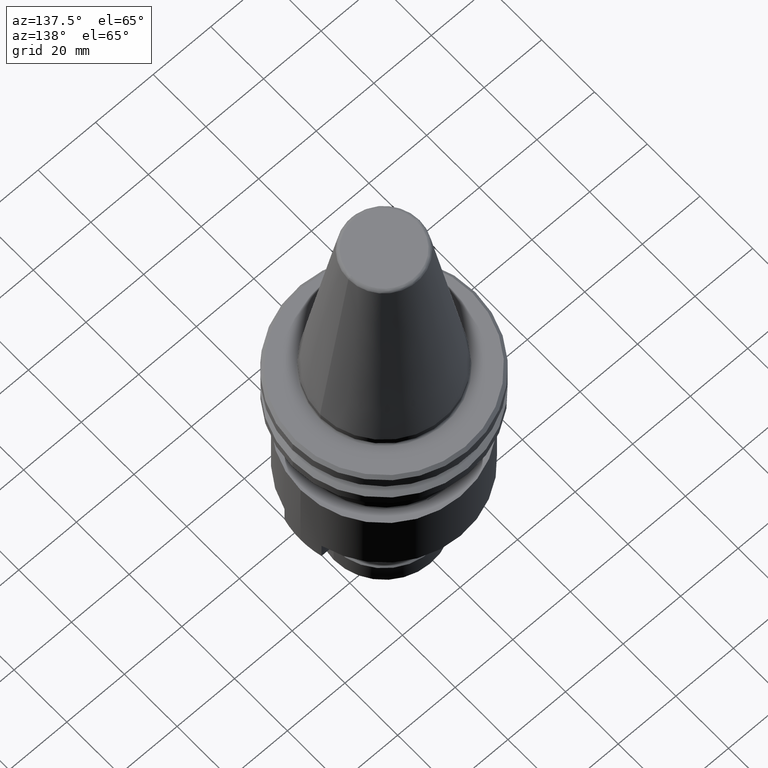
[diagram: clean part render]
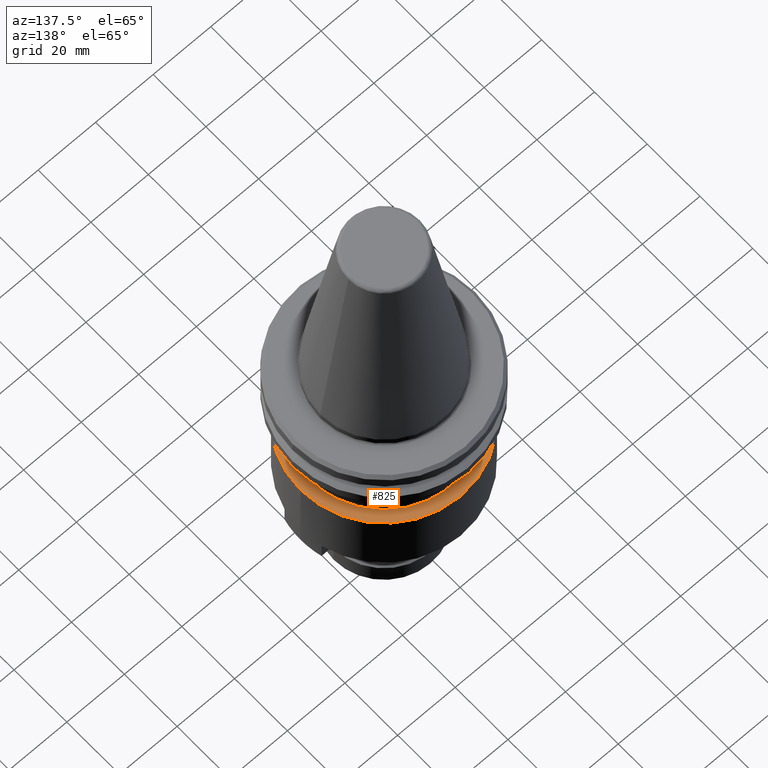
[diagram: same view with one face highlighted and labeled with its STEP entity id]
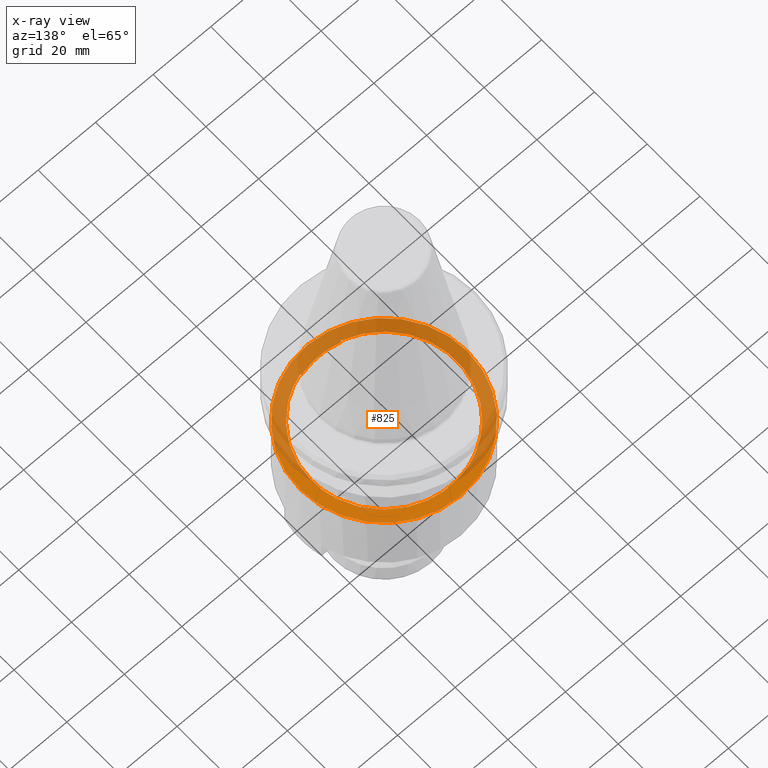
[diagram: x-ray of the same camera — body ghosted, the highlighted face saturated]
A machine part, auxiliary view. The second image highlights one B-rep face of the part: STEP entity #825.
The next image is the same camera in x-ray: the body ghosted, the highlighted face saturated — about 65% of this face is hidden behind the body in this view.
In plain terms, the highlighted planar face has unit normal (0, 0, -1).
Its self-contained STEP definition (entity closure, byte-faithful):
#2 = CARTESIAN_POINT ( 'NONE',  ( 98.73625297782088200, 112.7266800654597700, 59.76398860271278600 ) ) ;
#6 = VERTEX_POINT ( 'NONE', #994 ) ;
#36 = DIRECTION ( 'NONE',  ( -0.0000000000000000000, -0.0000000000000000000, -1.000000000000000000 ) ) ;
#71 = CARTESIAN_POINT ( 'NONE',  ( 106.8569960331300900, 88.18988720561229400, 59.76398860271280700 ) ) ;
#75 = CARTESIAN_POINT ( 'NONE',  ( 69.49264204341314200, 72.04041570050684100, 59.76398860271280700 ) ) ;
#82 = CARTESIAN_POINT ( 'NONE',  ( 104.6753528859718300, 82.20484227077997700, 59.76398860271281400 ) ) ;
#87 = CARTESIAN_POINT ( 'NONE',  ( 66.25719113330525500, 74.31624200357958900, 59.76398860271279300 ) ) ;
#91 = CARTESIAN_POINT ( 'NONE',  ( 103.4234690216822400, 107.3656526831247500, 59.76398860271277900 ) ) ;
#93 = B_SPLINE_CURVE_WITH_KNOTS ( 'NONE', 3,
 ( #342, #1921, #1931, #353, #2196, #624, #2447, #897, #2684, #1159, #2955, #1414, #3218, #1691, #75, #1944, #364, #2205, #636, #2460, #903, #2693, #1175, #2966, #1424, #3230, #1704, #87, #1953, #380, #2219, #647, #2469, #917, #2707, #1187, #2984, #1435, #3245, #1714, #101, #1963, #392, #2235, #659, #2478, #929, #2719, #1198, #2999, #1446, #3254, #1724, #111, #1975, #403, #2244, #673, #2489, #941, #2733, #1211, #3008, #1459, #3266, #1731, #124, #1990, #411, #2254, #686, #2501, #951, #2747, #1223, #3024, #1468, #3278, #1744, #133, #2000, #424, #2264, #693, #2511, #962, #2758, #1235, #3039, #1483, #3286, #1752, #146, #2011, #436, #2279, #702, #2521, #978, #2769, #1244, #3052, #1496, #3300, #1758, #156, #2024, #447, #2289, #716, #2534, #990, #2784, #1259, #3063, #1506, #3312, #1770, #174, #2037, #464, #2299, #727, #2546 ),
 .UNSPECIFIED., .F., .F.,
 ( 4, 1, 1, 1, 1, 1, 2, 2, 1, 1, 1, 1, 1, 2, 2, 1, 1, 1, 1, 1, 2, 2, 1, 1, 1, 1, 1, 2, 2, 1, 1, 1, 1, 2, 2, 1, 1, 1, 1, 2, 2, 1, 1, 1, 2, 2, 2, 1, 1, 1, 2, 2, 1, 1, 1, 1, 2, 2, 1, 1, 1, 1, 2, 2, 1, 1, 1, 1, 1, 2, 2, 1, 1, 1, 1, 1, 2, 2, 1, 1, 1, 1, 1, 2, 2, 1, 1, 1, 1, 1, 2, 2, 4 ),
 ( 0.0000000000000000000, 0.03125000000000551600, 0.04687500000000852800, 0.05468750000000964500, 0.05859375000000983200, 0.06054687500001029700, 0.06152343750001015200, 0.06250000000001000600, 0.09374999999999064600, 0.1093749999999813100, 0.1171874999999765000, 0.1210937499999742300, 0.1230468749999730900, 0.1240234374999727300, 0.1249999999999723600, 0.1562499999999598700, 0.1718749999999539000, 0.1796874999999512100, 0.1835937499999498500, 0.1855468749999493700, 0.1865234374999496200, 0.1874999999999498700, 0.2187499999999701100, 0.2343749999999802400, 0.2421874999999852900, 0.2460937499999878200, 0.2480468749999888400, 0.2490234374999891200, 0.2499999999999894000, 0.2812500000000040000, 0.2968750000000115500, 0.3046875000000149900, 0.3085937500000166000, 0.3105468750000175400, 0.3125000000000184300, 0.3437500000000276400, 0.3593750000000322000, 0.3671875000000344200, 0.3710937500000355300, 0.3730468750000360800, 0.3750000000000366400, 0.4062500000000432400, 0.4218750000000468000, 0.4296875000000482400, 0.4335937500000489600, 0.4375000000000496300, 0.5000000000000534000, 0.5312500000000556200, 0.5468750000000569500, 0.5546875000000578400, 0.5585937500000582900, 0.5625000000000587300, 0.5937500000000630600, 0.6093750000000655000, 0.6171875000000667200, 0.6210937500000673900, 0.6230468750000673900, 0.6250000000000673900, 0.6562500000000640600, 0.6718750000000622800, 0.6796875000000617300, 0.6835937500000610600, 0.6855468750000604000, 0.6875000000000597300, 0.7187500000000455200, 0.7343750000000381900, 0.7421875000000347500, 0.7460937500000333100, 0.7480468750000327500, 0.7490234375000323100, 0.7500000000000317500, 0.7812500000000193200, 0.7968750000000131000, 0.8046875000000098800, 0.8085937500000086600, 0.8105468750000084400, 0.8115234375000082200, 0.8125000000000081000, 0.8437500000000077700, 0.8593750000000074400, 0.8671875000000076600, 0.8710937500000074400, 0.8730468750000073300, 0.8740234375000069900, 0.8750000000000065500, 0.9062499999999963400, 0.9218749999999913400, 0.9296874999999887900, 0.9335937499999875700, 0.9355468749999873400, 0.9365234374999871200, 0.9374999999999870100, 1.000000000000000000 ),
 .UNSPECIFIED. ) ;
#95 = CARTESIAN_POINT ( 'NONE',  ( 96.90778647053885200, 73.21285567964224600, 59.76398860271280000 ) ) ;
#101 = CARTESIAN_POINT ( 'NONE',  ( 61.18092796304370800, 80.02532008920351800, 59.76398860271277200 ) ) ;
#107 = CARTESIAN_POINT ( 'NONE',  ( 91.74156811568381900, 70.34024109628178700, 59.76398860271277900 ) ) ;
#111 = CARTESIAN_POINT ( 'NONE',  ( 58.58307114660474500, 85.27852611993290600, 59.76398860271279300 ) ) ;
#113 = CARTESIAN_POINT ( 'NONE',  ( 75.30520418466076600, 69.94471248863992200, 59.76398860196545800 ) ) ;
#124 = CARTESIAN_POINT ( 'NONE',  ( 57.51835112268477700, 97.98305092681553700, 59.76398860271280700 ) ) ;
#133 = CARTESIAN_POINT ( 'NONE',  ( 60.19274199797298800, 105.6900952125274000, 59.76398860271278600 ) ) ;
#137 = VERTEX_POINT ( 'NONE', #2229 ) ;
#146 = CARTESIAN_POINT ( 'NONE',  ( 63.34359679979506600, 110.2155775735695900, 59.76398860271282800 ) ) ;
#156 = CARTESIAN_POINT ( 'NONE',  ( 68.35648041512584400, 114.6218704267962600, 59.76398860271278600 ) ) ;
#159 = CARTESIAN_POINT ( 'NONE',  ( 101.5699181125353500, 109.9065491247149700, 59.76398860271280000 ) ) ;
#170 = CARTESIAN_POINT ( 'NONE',  ( 75.30520418466076600, 77.18607933360428300, 59.76398860196545800 ) ) ;
#174 = CARTESIAN_POINT ( 'NONE',  ( 72.26861198594029600, 116.7494425365661800, 59.76398860271281400 ) ) ;
#196 = CIRCLE ( 'NONE', #1811, 28.99999999999999600 ) ;
#199 = CARTESIAN_POINT ( 'NONE',  ( 89.29234113264958200, 117.8441525182491300, 59.76398860196545800 ) ) ;
#212 = CARTESIAN_POINT ( 'NONE',  ( 82.29877265865518200, 93.68607934060428000, 59.76398860271279300 ) ) ;
#222 = DIRECTION ( 'NONE',  ( -0.0000000000000000000, 1.000000000000000000, -0.0000000000000000000 ) ) ;
#236 = CARTESIAN_POINT ( 'NONE',  ( 92.76710590970829200, 116.5539228016611700, 59.76398860271280000 ) ) ;
#243 = CARTESIAN_POINT ( 'NONE',  ( 99.50221363313275400, 112.0319700290777500, 59.76398860271279300 ) ) ;
#299 = DIRECTION ( 'NONE',  ( -1.000000000000000000, 0.0000000000000000000, 0.0000000000000000000 ) ) ;
#319 = CARTESIAN_POINT ( 'NONE',  ( 92.87571574797641500, 116.5038912464823700, 59.76398860271278600 ) ) ;
#327 = VERTEX_POINT ( 'NONE', #199 ) ;
#342 = CARTESIAN_POINT ( 'NONE',  ( 75.30520418466076600, 69.52800615965199400, 59.76398860196545800 ) ) ;
#348 = CARTESIAN_POINT ( 'NONE',  ( 107.4487726577334600, 93.04104384696461200, 59.76398860271280700 ) ) ;
#353 = CARTESIAN_POINT ( 'NONE',  ( 73.18630610073250900, 70.24235133808097900, 59.76398860271280000 ) ) ;
#361 = CARTESIAN_POINT ( 'NONE',  ( 106.3994395270687800, 86.49365390280175300, 59.76398860271278600 ) ) ;
#364 = CARTESIAN_POINT ( 'NONE',  ( 69.33857492544194700, 72.13251546751597200, 59.76398860271277900 ) ) ;
#369 = CARTESIAN_POINT ( 'NONE',  ( 104.3484050228924100, 105.7853085696923800, 59.76398860271278600 ) ) ;
#372 = CARTESIAN_POINT ( 'NONE',  ( 103.2506635238172800, 79.70394154604176200, 59.76398860271278600 ) ) ;
#379 = CARTESIAN_POINT ( 'NONE',  ( 106.2111967496482200, 101.4783981148753900, 59.76398860271280000 ) ) ;
#380 = CARTESIAN_POINT ( 'NONE',  ( 64.98094891672838000, 75.42674024084378500, 59.76398860271279300 ) ) ;
#388 = CARTESIAN_POINT ( 'NONE',  ( 96.55409964012558500, 72.96627763425226500, 59.76398860271280700 ) ) ;
#392 = CARTESIAN_POINT ( 'NONE',  ( 60.94366353552291600, 80.40135153961028900, 59.76398860271279300 ) ) ;
#397 = CARTESIAN_POINT ( 'NONE',  ( 89.29234113264958200, 69.52800616136374900, 59.76398860196545800 ) ) ;
#403 = CARTESIAN_POINT ( 'NONE',  ( 57.87099395632977700, 87.67985997287087200, 59.76398860271278600 ) ) ;
#411 = CARTESIAN_POINT ( 'NONE',  ( 57.57081140343890300, 98.27517396014356200, 59.76398860271280000 ) ) ;
#424 = CARTESIAN_POINT ( 'NONE',  ( 60.68096447357653000, 106.5394370830487200, 59.76398860271280700 ) ) ;
#436 = CARTESIAN_POINT ( 'NONE',  ( 63.81373769609086100, 110.7528341561813400, 59.76398860271280000 ) ) ;
#447 = CARTESIAN_POINT ( 'NONE',  ( 69.04473855327536600, 115.0604558536675200, 59.76398860271280000 ) ) ;
#464 = CARTESIAN_POINT ( 'NONE',  ( 72.31939120460619100, 116.7714582023557200, 59.76398860271278600 ) ) ;
#520 = AXIS2_PLACEMENT_3D ( 'NONE', #212, #1996, #3125 ) ;
#539 = CARTESIAN_POINT ( 'NONE',  ( 92.39904056708303400, 116.7198368604139200, 59.76398860271278600 ) ) ;
#540 = EDGE_CURVE ( 'NONE', #3360, #137, #2407, .T. ) ;
#561 = EDGE_LOOP ( 'NONE', ( #3148, #3134, #2452, #1295, #3337, #1618, #1538 ) ) ;
#562 = VERTEX_POINT ( 'NONE', #1692 ) ;
#585 = ORIENTED_EDGE ( 'NONE', *, *, #540, .F. ) ;
#595 = CARTESIAN_POINT ( 'NONE',  ( 104.0508724727735800, 106.3188592182505900, 59.76398860271279300 ) ) ;
#615 = CARTESIAN_POINT ( 'NONE',  ( 102.8302574621407600, 108.2280907977442300, 59.76398860271281400 ) ) ;
#624 = CARTESIAN_POINT ( 'NONE',  ( 72.54654614892705000, 70.50366528697156800, 59.76398860271280000 ) ) ;
#632 = CARTESIAN_POINT ( 'NONE',  ( 106.2753351093162600, 86.09339432999865900, 59.76398860271281400 ) ) ;
#636 = CARTESIAN_POINT ( 'NONE',  ( 69.29373123381331800, 72.15954280574416700, 59.76398860271279300 ) ) ;
#642 = CARTESIAN_POINT ( 'NONE',  ( 101.3268727039267100, 77.21441807839360600, 59.76398860271276400 ) ) ;
#647 = CARTESIAN_POINT ( 'NONE',  ( 63.76270346068407900, 76.68646114816765200, 59.76398860271278600 ) ) ;
#657 = CARTESIAN_POINT ( 'NONE',  ( 96.44633350282349200, 72.89255183707749100, 59.76398860271280700 ) ) ;
#659 = CARTESIAN_POINT ( 'NONE',  ( 60.87463017267737100, 80.51297019393840100, 59.76398860271279300 ) ) ;
#673 = CARTESIAN_POINT ( 'NONE',  ( 57.66357074914841300, 88.62251529468427700, 59.76398860271279300 ) ) ;
#686 = CARTESIAN_POINT ( 'NONE',  ( 58.00046833833854300, 100.2564451299768100, 59.76398860271278600 ) ) ;
#693 = CARTESIAN_POINT ( 'NONE',  ( 60.80151120881796300, 106.7395267746183100, 59.76398860271280000 ) ) ;
#694 = CARTESIAN_POINT ( 'NONE',  ( 105.8291879083657100, 102.5773292607540600, 59.76398860271280000 ) ) ;
#696 = AXIS2_PLACEMENT_3D ( 'NONE', #1460, #2251, #2316 ) ;
#702 = CARTESIAN_POINT ( 'NONE',  ( 65.35572933044723200, 112.2778911131268400, 59.76398860271277200 ) ) ;
#710 = CARTESIAN_POINT ( 'NONE',  ( 106.1296735627512400, 101.7249918741833500, 59.76398860271277900 ) ) ;
#716 = CARTESIAN_POINT ( 'NONE',  ( 69.21055547007824800, 115.1621468472324500, 59.76398860271280700 ) ) ;
#727 = CARTESIAN_POINT ( 'NONE',  ( 74.29263264974763100, 117.5510211824313600, 59.76398860271280000 ) ) ;
#783 = CARTESIAN_POINT ( 'NONE',  ( 105.3885757849273500, 103.6970919425879300, 59.76398860271278600 ) ) ;
#818 = CARTESIAN_POINT ( 'NONE',  ( 107.4487726544760200, 93.68607934060428000, 59.76398860271279300 ) ) ;
#825 = ADVANCED_FACE ( 'NONE', ( #2047, #2155 ), #887, .F. ) ;
#887 = PLANE ( 'NONE',  #696 ) ;
#893 = CARTESIAN_POINT ( 'NONE',  ( 107.3038404777336400, 90.95582999573875300, 59.76398860271278600 ) ) ;
#897 = CARTESIAN_POINT ( 'NONE',  ( 72.39503495122465900, 70.56814769170375700, 59.76398860271280000 ) ) ;
#902 = CARTESIAN_POINT ( 'NONE',  ( 106.2374153870293900, 85.97467592522457400, 59.76398860271280000 ) ) ;
#903 = CARTESIAN_POINT ( 'NONE',  ( 67.96530335808077400, 73.00382769105523600, 59.76398860271280000 ) ) ;
#908 = CARTESIAN_POINT ( 'NONE',  ( 100.0666946786072800, 75.88499422418081500, 59.76398860271279300 ) ) ;
#917 = CARTESIAN_POINT ( 'NONE',  ( 63.46957780516665800, 77.01313432237395800, 59.76398860271281400 ) ) ;
#923 = CARTESIAN_POINT ( 'NONE',  ( 95.00055005349518900, 71.96093107004180900, 59.76398860271279300 ) ) ;
#929 = CARTESIAN_POINT ( 'NONE',  ( 59.91840858524360400, 82.16971479945804900, 59.76398860271278600 ) ) ;
#930 = VERTEX_POINT ( 'NONE', #113 ) ;
#941 = CARTESIAN_POINT ( 'NONE',  ( 57.60716459988633900, 88.90521299421122600, 59.76398860271279300 ) ) ;
#951 = CARTESIAN_POINT ( 'NONE',  ( 58.62566368512194300, 102.1816264303291700, 59.76398860271280000 ) ) ;
#962 = CARTESIAN_POINT ( 'NONE',  ( 61.22210477394592900, 107.4266652095891200, 59.76398860271279300 ) ) ;
#978 = CARTESIAN_POINT ( 'NONE',  ( 66.01670035837808800, 112.8545238135190200, 59.76398860271279300 ) ) ;
#990 = CARTESIAN_POINT ( 'NONE',  ( 69.26172172359174800, 115.1932438278613800, 59.76398860271279300 ) ) ;
#994 = CARTESIAN_POINT ( 'NONE',  ( 75.30520418466076600, 117.8441525209326100, 59.76398860196545800 ) ) ;
#1006 = DIRECTION ( 'NONE',  ( -0.0000000000000000000, -0.0000000000000000000, -1.000000000000000000 ) ) ;
#1012 = EDGE_CURVE ( 'NONE', #2109, #930, #1920, .T. ) ;
#1016 = CARTESIAN_POINT ( 'NONE',  ( 106.0323662911173100, 102.0102962768684000, 59.76398860271277900 ) ) ;
#1058 = EDGE_CURVE ( 'NONE', #327, #3145, #1192, .T. ) ;
#1060 = CARTESIAN_POINT ( 'NONE',  ( 75.30520418466076600, 69.52800615965199400, 59.76398860196545800 ) ) ;
#1062 = CIRCLE ( 'NONE', #1098, 24.75000000000000700 ) ;
#1098 = AXIS2_PLACEMENT_3D ( 'NONE', #1655, #36, #1912 ) ;
#1099 = EDGE_CURVE ( 'NONE', #3112, #562, #1686, .T. ) ;
#1153 = CARTESIAN_POINT ( 'NONE',  ( 107.1945631522993000, 90.11762902504341400, 59.76398860271280000 ) ) ;
#1159 = CARTESIAN_POINT ( 'NONE',  ( 72.35100078892006100, 70.58706082327849200, 59.76398860271279300 ) ) ;
#1161 = CARTESIAN_POINT ( 'NONE',  ( 96.98311584077720200, 114.1156998907281700, 59.76398860271280000 ) ) ;
#1170 = CARTESIAN_POINT ( 'NONE',  ( 105.6534086020057100, 84.30949379873354100, 59.76398860271279300 ) ) ;
#1175 = CARTESIAN_POINT ( 'NONE',  ( 66.66337213640763100, 73.98582156619504200, 59.76398860271280000 ) ) ;
#1182 = CARTESIAN_POINT ( 'NONE',  ( 99.75407897042565300, 75.57965570118481900, 59.76398860271278600 ) ) ;
#1187 = CARTESIAN_POINT ( 'NONE',  ( 63.40045760339941000, 77.09160331472926900, 59.76398860271281400 ) ) ;
#1191 = CARTESIAN_POINT ( 'NONE',  ( 93.44419087713483000, 71.13939560411024800, 59.76398860271277900 ) ) ;
#1192 = B_SPLINE_CURVE_WITH_KNOTS ( 'NONE', 3,
 ( #3186, #2865, #2207, #2738, #539, #1580, #236, #1409, #319, #2850, #2285, #1771, #2283, #2107, #2372, #3267, #1614, #1161, #2778, #2, #1994, #1616, #243, #3374, #3201, #159, #615, #91, #595, #369, #1394, #2390, #3248, #2038, #783, #694, #1016, #710, #1820, #3025, #379, #1420, #1456, #3285, #3264, #3244, #3241, #3228, #3036, #3021, #3007, #2998 ),
 .UNSPECIFIED., .F., .F.,
 ( 4, 1, 1, 1, 1, 2, 2, 1, 1, 1, 1, 2, 2, 1, 1, 1, 2, 2, 2, 1, 1, 1, 2, 2, 1, 1, 1, 1, 2, 2, 1, 1, 1, 1, 2, 2, 4 ),
 ( 0.0000000000000000000, 0.06250000000002256500, 0.09375000000003298800, 0.1093750000000381900, 0.1171875000000399300, 0.1210937500000410500, 0.1250000000000421900, 0.1875000000000659800, 0.2187500000000784100, 0.2343750000000844600, 0.2421875000000874600, 0.2460937500000880700, 0.2500000000000886500, 0.3125000000000792700, 0.3437500000000750500, 0.3593750000000737700, 0.3671875000000727200, 0.3750000000000716600, 0.5000000000000480700, 0.5625000000000367500, 0.5937500000000307500, 0.6093750000000279800, 0.6171875000000270900, 0.6250000000000262000, 0.6875000000000229800, 0.7187500000000209800, 0.7343750000000204300, 0.7421875000000197600, 0.7460937500000201000, 0.7500000000000205400, 0.8125000000000131000, 0.8437500000000094400, 0.8593750000000075500, 0.8671875000000057700, 0.8710937500000055500, 0.8750000000000052200, 1.000000000000000000 ),
 .UNSPECIFIED. ) ;
#1198 = CARTESIAN_POINT ( 'NONE',  ( 59.10804807216825900, 83.95077806212313500, 59.76398860271278600 ) ) ;
#1208 = EDGE_LOOP ( 'NONE', ( #2268, #585 ) ) ;
#1211 = CARTESIAN_POINT ( 'NONE',  ( 57.14877287900996100, 92.11092144075493600, 59.76398860271283600 ) ) ;
#1223 = CARTESIAN_POINT ( 'NONE',  ( 58.79442082893011400, 102.6342943303087600, 59.76398860271280000 ) ) ;
#1235 = CARTESIAN_POINT ( 'NONE',  ( 62.57337517373439100, 109.2956182834423500, 59.76398860271280000 ) ) ;
#1244 = CARTESIAN_POINT ( 'NONE',  ( 66.17677956620882200, 112.9890405730372700, 59.76398860271281400 ) ) ;
#1259 = CARTESIAN_POINT ( 'NONE',  ( 70.51951388191243100, 115.9200936134112100, 59.76398860271278600 ) ) ;
#1295 = ORIENTED_EDGE ( 'NONE', *, *, #2180, .T. ) ;
#1385 = CIRCLE ( 'NONE', #520, 25.15000000000000600 ) ;
#1394 = CARTESIAN_POINT ( 'NONE',  ( 104.4724541496376100, 105.5544681668557100, 59.76398860271280000 ) ) ;
#1409 = CARTESIAN_POINT ( 'NONE',  ( 92.84050760921010700, 116.5201763153904600, 59.76398860271277200 ) ) ;
#1410 = CARTESIAN_POINT ( 'NONE',  ( 107.1649792554212600, 89.91833170419367600, 59.76398860271279300 ) ) ;
#1414 = CARTESIAN_POINT ( 'NONE',  ( 71.02910109752595200, 71.18948410987168500, 59.76398860271280700 ) ) ;
#1419 = CARTESIAN_POINT ( 'NONE',  ( 104.9068493222728500, 82.66560149846722500, 59.76398860271278600 ) ) ;
#1420 = CARTESIAN_POINT ( 'NONE',  ( 106.4309977664360100, 100.8000541890552700, 59.76398860271280700 ) ) ;
#1424 = CARTESIAN_POINT ( 'NONE',  ( 66.34611292622271600, 74.24288330418625000, 59.76398860271280700 ) ) ;
#1429 = CARTESIAN_POINT ( 'NONE',  ( 99.12715468193694300, 74.98300742821263000, 59.76398860271279300 ) ) ;
#1435 = CARTESIAN_POINT ( 'NONE',  ( 62.90388033115666400, 77.65898332693842600, 59.76398860271280000 ) ) ;
#1437 = EDGE_CURVE ( 'NONE', #6, #327, #1385, .T. ) ;
#1440 = CARTESIAN_POINT ( 'NONE',  ( 93.06591479251368100, 70.95739558704964600, 59.76398860271280700 ) ) ;
#1446 = CARTESIAN_POINT ( 'NONE',  ( 58.93243477629491200, 84.38343577607558600, 59.76398860271280000 ) ) ;
#1456 = CARTESIAN_POINT ( 'NONE',  ( 106.7022282682596700, 99.83310058671693800, 59.76398860271279300 ) ) ;
#1459 = CARTESIAN_POINT ( 'NONE',  ( 57.20377950556405700, 95.64986018318302300, 59.76398860271277200 ) ) ;
#1460 = CARTESIAN_POINT ( 'NONE',  ( 75.30520418465518200, 66.24818559860428000, 59.76398860271279300 ) ) ;
#1468 = CARTESIAN_POINT ( 'NONE',  ( 58.84701236562440100, 102.7712113143128100, 59.76398860271279300 ) ) ;
#1483 = CARTESIAN_POINT ( 'NONE',  ( 63.16902482635020300, 110.0136515664515700, 59.76398860271279300 ) ) ;
#1496 = CARTESIAN_POINT ( 'NONE',  ( 66.22611421772646200, 113.0301360050934000, 59.76398860271277900 ) ) ;
#1506 = CARTESIAN_POINT ( 'NONE',  ( 71.87485823299432800, 116.5749710362374700, 59.76398860271278600 ) ) ;
#1538 = ORIENTED_EDGE ( 'NONE', *, *, #1012, .F. ) ;
#1580 = CARTESIAN_POINT ( 'NONE',  ( 92.65690108512173100, 116.6042697853316400, 59.76398860271279300 ) ) ;
#1614 = CARTESIAN_POINT ( 'NONE',  ( 96.37583287458079400, 114.5274021829314700, 59.76398860271280000 ) ) ;
#1616 = CARTESIAN_POINT ( 'NONE',  ( 99.37598856955156600, 112.1495371939045600, 59.76398860271280000 ) ) ;
#1618 = ORIENTED_EDGE ( 'NONE', *, *, #1868, .T. ) ;
#1648 = VECTOR ( 'NONE', #2231, 1000.000000000000000 ) ;
#1655 = CARTESIAN_POINT ( 'NONE',  ( 82.29877265865518200, 93.68607934060428000, 59.76398860196545800 ) ) ;
#1686 = LINE ( 'NONE', #2408, #1648 ) ;
#1687 = CARTESIAN_POINT ( 'NONE',  ( 107.0500734859519300, 89.17542442244546000, 59.76398860271279300 ) ) ;
#1691 = CARTESIAN_POINT ( 'NONE',  ( 69.70918459366829700, 71.91312354527829600, 59.76398860271279300 ) ) ;
#1692 = CARTESIAN_POINT ( 'NONE',  ( 89.29234113264958200, 69.52800616136374900, 59.76398860196545800 ) ) ;
#1699 = CARTESIAN_POINT ( 'NONE',  ( 104.7140076504767700, 82.28049692027258300, 59.76398860271280000 ) ) ;
#1704 = CARTESIAN_POINT ( 'NONE',  ( 66.27105799208921200, 74.30476759253437500, 59.76398860271281400 ) ) ;
#1709 = CARTESIAN_POINT ( 'NONE',  ( 97.39623931837945700, 73.56639426558349700, 59.76398860271280700 ) ) ;
#1714 = CARTESIAN_POINT ( 'NONE',  ( 61.52226023137442500, 79.50561429729934600, 59.76398860271278600 ) ) ;
#1719 = CARTESIAN_POINT ( 'NONE',  ( 92.95043950009539900, 70.90305661227553500, 59.76398860271279300 ) ) ;
#1724 = CARTESIAN_POINT ( 'NONE',  ( 58.88153741915021300, 84.51231602524303800, 59.76398860271280000 ) ) ;
#1726 = B_SPLINE_CURVE_WITH_KNOTS ( 'NONE', 3,
 ( #2189, #348, #2443, #893, #2679, #1153, #2951, #1410, #3213, #1687, #71, #1937, #361, #2203, #632, #2453, #902, #2692, #1170, #2962, #1419, #3227, #1699, #82, #1950, #372, #2214, #642, #2464, #908, #2699, #1182, #2977, #1429, #3240, #1709, #95, #1959, #388, #2226, #657, #2474, #923, #2711, #1191, #2993, #1440, #3250, #1719, #107, #1968, #397 ),
 .UNSPECIFIED., .F., .F.,
 ( 4, 1, 1, 1, 1, 2, 2, 1, 1, 1, 1, 2, 2, 1, 1, 1, 2, 2, 2, 1, 1, 1, 2, 2, 1, 1, 1, 1, 2, 2, 1, 1, 1, 1, 2, 2, 4 ),
 ( 0.0000000000000000000, 0.06250000000000076300, 0.09375000000000187400, 0.1093750000000030800, 0.1171875000000036900, 0.1210937500000040100, 0.1250000000000043000, 0.1875000000000086300, 0.2187500000000106000, 0.2343750000000114400, 0.2421875000000120500, 0.2460937500000123200, 0.2500000000000126600, 0.3125000000000083300, 0.3437500000000061600, 0.3593750000000042200, 0.3671875000000038300, 0.3750000000000033900, 0.5000000000000020000, 0.5625000000000017800, 0.5937500000000020000, 0.6093750000000022200, 0.6171875000000018900, 0.6250000000000015500, 0.6874999999999961100, 0.7187499999999930100, 0.7343749999999920100, 0.7421874999999916700, 0.7460937499999914500, 0.7499999999999912300, 0.8124999999999801300, 0.8437499999999743500, 0.8593749999999720200, 0.8671874999999708000, 0.8710937499999709100, 0.8749999999999709100, 1.000000000000000000 ),
 .UNSPECIFIED. ) ;
#1731 = CARTESIAN_POINT ( 'NONE',  ( 57.46850096479352700, 97.69239099041918500, 59.76398860271279300 ) ) ;
#1744 = CARTESIAN_POINT ( 'NONE',  ( 59.58737029604168400, 104.5350245521914400, 59.76398860271278600 ) ) ;
#1752 = CARTESIAN_POINT ( 'NONE',  ( 63.31437896898594900, 110.1820133445842300, 59.76398860271277200 ) ) ;
#1758 = CARTESIAN_POINT ( 'NONE',  ( 67.45928088845113300, 114.0083174988730800, 59.76398860271279300 ) ) ;
#1770 = CARTESIAN_POINT ( 'NONE',  ( 72.21923127239934100, 116.7279469494316300, 59.76398860271279300 ) ) ;
#1771 = CARTESIAN_POINT ( 'NONE',  ( 95.42616333228656300, 115.1429092825902400, 59.76398860271280000 ) ) ;
#1811 = AXIS2_PLACEMENT_3D ( 'NONE', #3414, #1881, #299 ) ;
#1820 = CARTESIAN_POINT ( 'NONE',  ( 106.1704591249354300, 101.6023354350165300, 59.76398860271280000 ) ) ;
#1846 = VECTOR ( 'NONE', #222, 1000.000000000000000 ) ;
#1868 = EDGE_CURVE ( 'NONE', #3112, #930, #1062, .T. ) ;
#1881 = DIRECTION ( 'NONE',  ( -0.0000000000000000000, -0.0000000000000000000, -1.000000000000000000 ) ) ;
#1912 = DIRECTION ( 'NONE',  ( -1.000000000000000000, 0.0000000000000000000, 0.0000000000000000000 ) ) ;
#1920 = LINE ( 'NONE', #170, #1846 ) ;
#1921 = CARTESIAN_POINT ( 'NONE',  ( 74.79892006626376100, 69.67457135140097100, 59.76398860271277900 ) ) ;
#1931 = CARTESIAN_POINT ( 'NONE',  ( 74.04787076137269300, 69.91776631697167900, 59.76398860271278600 ) ) ;
#1937 = CARTESIAN_POINT ( 'NONE',  ( 106.5633555970533000, 87.05635482977217500, 59.76398860271280000 ) ) ;
#1944 = CARTESIAN_POINT ( 'NONE',  ( 69.38473971832705400, 72.10477809054906100, 59.76398860271280700 ) ) ;
#1950 = CARTESIAN_POINT ( 'NONE',  ( 103.9920419302670400, 80.88441429452333900, 59.76398860271279300 ) ) ;
#1953 = CARTESIAN_POINT ( 'NONE',  ( 65.72588153356474500, 74.75700296450772000, 59.76398860271280700 ) ) ;
#1959 = CARTESIAN_POINT ( 'NONE',  ( 96.66064321412380900, 73.03970783119132200, 59.76398860271279300 ) ) ;
#1963 = CARTESIAN_POINT ( 'NONE',  ( 61.01424533748775800, 80.28810265414054500, 59.76398860271282800 ) ) ;
#1968 = CARTESIAN_POINT ( 'NONE',  ( 90.53441281667186000, 69.88757595113530400, 59.76398860271278600 ) ) ;
#1975 = CARTESIAN_POINT ( 'NONE',  ( 58.21299511634314400, 86.37494914086286700, 59.76398860271277200 ) ) ;
#1990 = CARTESIAN_POINT ( 'NONE',  ( 57.55273054285728300, 98.17671658165851100, 59.76398860271280000 ) ) ;
#1994 = CARTESIAN_POINT ( 'NONE',  ( 99.18581772187414500, 112.3248531392823400, 59.76398860271278600 ) ) ;
#1996 = DIRECTION ( 'NONE',  ( 0.0000000000000000000, 0.0000000000000000000, -1.000000000000000000 ) ) ;
#2000 = CARTESIAN_POINT ( 'NONE',  ( 60.51496710559866400, 106.2579384714207200, 59.76398860271279300 ) ) ;
#2011 = CARTESIAN_POINT ( 'NONE',  ( 63.35910913776079700, 110.2333474621821200, 59.76398860271280700 ) ) ;
#2024 = CARTESIAN_POINT ( 'NONE',  ( 68.81385646025943000, 114.9163158798600400, 59.76398860271279300 ) ) ;
#2037 = CARTESIAN_POINT ( 'NONE',  ( 72.30155003925844400, 116.7637388218223900, 59.76398860271278600 ) ) ;
#2038 = CARTESIAN_POINT ( 'NONE',  ( 104.9521847798059200, 104.6323686082671400, 59.76398860271281400 ) ) ;
#2047 = FACE_BOUND ( 'NONE', #561, .T. ) ;
#2107 = CARTESIAN_POINT ( 'NONE',  ( 96.16738141818710500, 114.6669504870005600, 59.76398860271282100 ) ) ;
#2109 = VERTEX_POINT ( 'NONE', #1060 ) ;
#2155 = FACE_OUTER_BOUND ( 'NONE', #1208, .T. ) ;
#2180 = EDGE_CURVE ( 'NONE', #3145, #562, #1726, .T. ) ;
#2187 = CARTESIAN_POINT ( 'NONE',  ( 82.29877265865518200, 93.68607934060428000, 59.76398860196545800 ) ) ;
#2189 = CARTESIAN_POINT ( 'NONE',  ( 107.4487726544760200, 93.68607934060428000, 59.76398860271279300 ) ) ;
#2196 = CARTESIAN_POINT ( 'NONE',  ( 72.75918865251219400, 70.41485823895482100, 59.76398860271280000 ) ) ;
#2203 = CARTESIAN_POINT ( 'NONE',  ( 106.3132075290899600, 86.21331975455396400, 59.76398860271279300 ) ) ;
#2205 = CARTESIAN_POINT ( 'NONE',  ( 69.30781596590146900, 72.15104116227624300, 59.76398860271280700 ) ) ;
#2207 = CARTESIAN_POINT ( 'NONE',  ( 90.83183149342393400, 117.3597811467398200, 59.76398860271280700 ) ) ;
#2214 = CARTESIAN_POINT ( 'NONE',  ( 101.9898847580393800, 78.02490188750481100, 59.76398860271280000 ) ) ;
#2219 = CARTESIAN_POINT ( 'NONE',  ( 64.16065321999225500, 76.25820363870390400, 59.76398860271280000 ) ) ;
#2226 = CARTESIAN_POINT ( 'NONE',  ( 96.48293169400801600, 72.91749661936525200, 59.76398860271280000 ) ) ;
#2229 = CARTESIAN_POINT ( 'NONE',  ( 111.2987726586551800, 93.68607934060428000, 59.76398860196545800 ) ) ;
#2231 = DIRECTION ( 'NONE',  ( 0.0000000000000000000, -1.000000000000000000, 0.0000000000000000000 ) ) ;
#2235 = CARTESIAN_POINT ( 'NONE',  ( 60.89679869176586600, 80.47699030463707000, 59.76398860271281400 ) ) ;
#2244 = CARTESIAN_POINT ( 'NONE',  ( 57.72243192847938800, 88.33875304910566200, 59.76398860271279300 ) ) ;
#2251 = DIRECTION ( 'NONE',  ( 0.0000000000000000000, 0.0000000000000000000, -1.000000000000000000 ) ) ;
#2254 = CARTESIAN_POINT ( 'NONE',  ( 57.73296919106469700, 99.13059536017767900, 59.76398860271279300 ) ) ;
#2264 = CARTESIAN_POINT ( 'NONE',  ( 60.75315294860238400, 106.6595601270709700, 59.76398860271280000 ) ) ;
#2268 = ORIENTED_EDGE ( 'NONE', *, *, #3178, .F. ) ;
#2279 = CARTESIAN_POINT ( 'NONE',  ( 64.50290228281029700, 111.4798265111147400, 59.76398860271278600 ) ) ;
#2283 = CARTESIAN_POINT ( 'NONE',  ( 95.92175807862851400, 114.8281599959138200, 59.76398860271279300 ) ) ;
#2285 = CARTESIAN_POINT ( 'NONE',  ( 94.41758157070343300, 115.7417289313420800, 59.76398860271280700 ) ) ;
#2289 = CARTESIAN_POINT ( 'NONE',  ( 69.16072811739553600, 115.1317551523901300, 59.76398860271279300 ) ) ;
#2299 = CARTESIAN_POINT ( 'NONE',  ( 73.30240274104730200, 117.1956316580940200, 59.76398860271279300 ) ) ;
#2316 = DIRECTION ( 'NONE',  ( -1.000000000000000000, 0.0000000000000000000, -0.0000000000000000000 ) ) ;
#2372 = CARTESIAN_POINT ( 'NONE',  ( 96.27218269936672400, 114.5970389405573000, 59.76398860271279300 ) ) ;
#2390 = CARTESIAN_POINT ( 'NONE',  ( 104.5543836067331500, 105.4000910451492800, 59.76398860271278600 ) ) ;
#2407 = CIRCLE ( 'NONE', #2696, 28.99999999999999600 ) ;
#2408 = CARTESIAN_POINT ( 'NONE',  ( 89.29234113264958200, 77.18607933360428300, 59.76398860196545800 ) ) ;
#2443 = CARTESIAN_POINT ( 'NONE',  ( 107.4117686989709900, 92.07633779878673900, 59.76398860271280000 ) ) ;
#2447 = CARTESIAN_POINT ( 'NONE',  ( 72.44045395226571300, 70.54870721037485700, 59.76398860271280000 ) ) ;
#2452 = ORIENTED_EDGE ( 'NONE', *, *, #1058, .T. ) ;
#2453 = CARTESIAN_POINT ( 'NONE',  ( 106.2498833074201100, 86.01349244292545400, 59.76398860271280700 ) ) ;
#2460 = CARTESIAN_POINT ( 'NONE',  ( 68.74435139584211600, 72.49202494911257600, 59.76398860271280000 ) ) ;
#2464 = CARTESIAN_POINT ( 'NONE',  ( 100.4962689661540200, 76.31966666970585300, 59.76398860271279300 ) ) ;
#2469 = CARTESIAN_POINT ( 'NONE',  ( 63.56677810329497200, 76.90372135553295200, 59.76398860271279300 ) ) ;
#2474 = CARTESIAN_POINT ( 'NONE',  ( 95.85510580093182400, 72.49173335123592200, 59.76398860271279300 ) ) ;
#2478 = CARTESIAN_POINT ( 'NONE',  ( 60.45962977090905400, 81.19072853646569900, 59.76398860271280700 ) ) ;
#2489 = CARTESIAN_POINT ( 'NONE',  ( 57.62539846541140100, 88.81199668031912600, 59.76398860271280700 ) ) ;
#2501 = CARTESIAN_POINT ( 'NONE',  ( 58.40230601342706500, 101.5441903584780100, 59.76398860271278600 ) ) ;
#2511 = CARTESIAN_POINT ( 'NONE',  ( 60.82697548498009600, 106.7813612957064600, 59.76398860271280000 ) ) ;
#2521 = CARTESIAN_POINT ( 'NONE',  ( 65.79434327838177400, 112.6644001277804100, 59.76398860271279300 ) ) ;
#2534 = CARTESIAN_POINT ( 'NONE',  ( 69.24379982508637000, 115.1823712776901200, 59.76398860271279300 ) ) ;
#2546 = CARTESIAN_POINT ( 'NONE',  ( 75.30520418466076600, 117.8441525209326100, 59.76398860196545800 ) ) ;
#2679 = CARTESIAN_POINT ( 'NONE',  ( 107.2336871331113200, 90.39682174083800700, 59.76398860271280000 ) ) ;
#2684 = CARTESIAN_POINT ( 'NONE',  ( 72.36476652458452500, 70.58113841256089000, 59.76398860271278600 ) ) ;
#2692 = CARTESIAN_POINT ( 'NONE',  ( 106.0114995892392100, 85.27745874296933000, 59.76398860271281400 ) ) ;
#2693 = CARTESIAN_POINT ( 'NONE',  ( 67.09150132035492200, 73.65026750526838800, 59.76398860271277900 ) ) ;
#2696 = AXIS2_PLACEMENT_3D ( 'NONE', #2187, #1006, #3083 ) ;
#2699 = CARTESIAN_POINT ( 'NONE',  ( 99.87953303708866300, 75.70142816013121500, 59.76398860271280000 ) ) ;
#2707 = CARTESIAN_POINT ( 'NONE',  ( 63.42808390180443500, 77.06019335026830700, 59.76398860271278600 ) ) ;
#2711 = CARTESIAN_POINT ( 'NONE',  ( 93.96877599481172200, 71.40301518550097600, 59.76398860271278600 ) ) ;
#2719 = CARTESIAN_POINT ( 'NONE',  ( 59.36514190397062400, 83.35062961243207300, 59.76398860271280000 ) ) ;
#2733 = CARTESIAN_POINT ( 'NONE',  ( 57.29545830361561800, 90.54953637268916100, 59.76398860271280000 ) ) ;
#2738 = CARTESIAN_POINT ( 'NONE',  ( 91.88045582165898400, 116.9433341299831000, 59.76398860271279300 ) ) ;
#2747 = CARTESIAN_POINT ( 'NONE',  ( 58.74295222950704000, 102.4987353306548800, 59.76398860271278600 ) ) ;
#2758 = CARTESIAN_POINT ( 'NONE',  ( 61.81635298820826600, 108.3108949964012600, 59.76398860271278600 ) ) ;
#2769 = CARTESIAN_POINT ( 'NONE',  ( 66.12864142488345500, 112.9488029509913100, 59.76398860271277900 ) ) ;
#2778 = CARTESIAN_POINT ( 'NONE',  ( 97.81379242515754400, 113.5013594656653200, 59.76398860271280000 ) ) ;
#2783 = CARTESIAN_POINT ( 'NONE',  ( 53.29877265865518200, 93.68607934060428000, 59.76398860196545800 ) ) ;
#2784 = CARTESIAN_POINT ( 'NONE',  ( 69.76865572255385900, 115.5000392551717700, 59.76398860271280000 ) ) ;
#2837 = CARTESIAN_POINT ( 'NONE',  ( 89.29234113264958200, 69.94471248863992200, 59.76398860196545800 ) ) ;
#2850 = CARTESIAN_POINT ( 'NONE',  ( 93.52326759980505200, 116.2024104738135300, 59.76398860271280000 ) ) ;
#2865 = CARTESIAN_POINT ( 'NONE',  ( 89.91337377655906900, 117.6643685513055700, 59.76398860271280000 ) ) ;
#2920 = EDGE_CURVE ( 'NONE', #2109, #6, #93, .T. ) ;
#2951 = CARTESIAN_POINT ( 'NONE',  ( 107.1769284515582400, 89.99804173505769700, 59.76398860271279300 ) ) ;
#2955 = CARTESIAN_POINT ( 'NONE',  ( 71.80695190238917300, 70.82181985645620200, 59.76398860271279300 ) ) ;
#2962 = CARTESIAN_POINT ( 'NONE',  ( 105.1671214680956600, 83.20879927930400300, 59.76398860271278600 ) ) ;
#2966 = CARTESIAN_POINT ( 'NONE',  ( 66.45150050316286200, 74.15668213511332900, 59.76398860271279300 ) ) ;
#2977 = CARTESIAN_POINT ( 'NONE',  ( 99.69016179070577300, 75.51826351657523200, 59.76398860271279300 ) ) ;
#2984 = CARTESIAN_POINT ( 'NONE',  ( 63.38754218042392800, 77.10632188145746100, 59.76398860271280000 ) ) ;
#2993 = CARTESIAN_POINT ( 'NONE',  ( 93.17972379621255600, 71.01142040363481600, 59.76398860271278600 ) ) ;
#2998 = CARTESIAN_POINT ( 'NONE',  ( 107.4487726544760200, 93.68607934060428000, 59.76398860271279300 ) ) ;
#2999 = CARTESIAN_POINT ( 'NONE',  ( 58.98438603347563000, 84.25327504776970500, 59.76398860271278600 ) ) ;
#3007 = CARTESIAN_POINT ( 'NONE',  ( 107.4487726564378800, 94.97614181491107400, 59.76398860271278600 ) ) ;
#3008 = CARTESIAN_POINT ( 'NONE',  ( 57.14877255287195400, 94.47365829052027700, 59.76398860271280000 ) ) ;
#3021 = CARTESIAN_POINT ( 'NONE',  ( 107.3500954264123900, 96.25862028937190500, 59.76398860271279300 ) ) ;
#3024 = CARTESIAN_POINT ( 'NONE',  ( 58.82900035752349800, 102.7245903712399800, 59.76398860271279300 ) ) ;
#3025 = CARTESIAN_POINT ( 'NONE',  ( 106.1974455987847700, 101.5204793369651700, 59.76398860271281400 ) ) ;
#3036 = CARTESIAN_POINT ( 'NONE',  ( 107.1465736376073900, 97.57335521631853200, 59.76398860271279300 ) ) ;
#3039 = CARTESIAN_POINT ( 'NONE',  ( 62.96781941705242500, 109.7762603942361900, 59.76398860271277900 ) ) ;
#3052 = CARTESIAN_POINT ( 'NONE',  ( 66.20890797121171500, 113.0158283827156300, 59.76398860271280000 ) ) ;
#3063 = CARTESIAN_POINT ( 'NONE',  ( 71.41913939480471600, 116.3643183433041800, 59.76398860271278600 ) ) ;
#3083 = DIRECTION ( 'NONE',  ( -1.000000000000000000, 0.0000000000000000000, 0.0000000000000000000 ) ) ;
#3112 = VERTEX_POINT ( 'NONE', #2837 ) ;
#3125 = DIRECTION ( 'NONE',  ( -1.000000000000000000, 0.0000000000000000000, 0.0000000000000000000 ) ) ;
#3134 = ORIENTED_EDGE ( 'NONE', *, *, #1437, .T. ) ;
#3145 = VERTEX_POINT ( 'NONE', #818 ) ;
#3148 = ORIENTED_EDGE ( 'NONE', *, *, #2920, .T. ) ;
#3178 = EDGE_CURVE ( 'NONE', #137, #3360, #196, .T. ) ;
#3186 = CARTESIAN_POINT ( 'NONE',  ( 89.29234113264958200, 117.8441525182491300, 59.76398860196545800 ) ) ;
#3201 = CARTESIAN_POINT ( 'NONE',  ( 100.6421147240276400, 110.9488662790104200, 59.76398860271281400 ) ) ;
#3213 = CARTESIAN_POINT ( 'NONE',  ( 107.1591576833117300, 89.88009513543025300, 59.76398860271280000 ) ) ;
#3218 = CARTESIAN_POINT ( 'NONE',  ( 70.14522129451103200, 71.66426973424468400, 59.76398860271278600 ) ) ;
#3227 = CARTESIAN_POINT ( 'NONE',  ( 104.7916337071628400, 82.43433448072536900, 59.76398860271279300 ) ) ;
#3228 = CARTESIAN_POINT ( 'NONE',  ( 107.1398058641791800, 97.61639293135490900, 59.76398860271280000 ) ) ;
#3230 = CARTESIAN_POINT ( 'NONE',  ( 66.30106430175169400, 74.27999185192042800, 59.76398860271280700 ) ) ;
#3240 = CARTESIAN_POINT ( 'NONE',  ( 98.34981035410254400, 74.30244299362323100, 59.76398860271278600 ) ) ;
#3241 = CARTESIAN_POINT ( 'NONE',  ( 107.1265654761925800, 97.69919850818068600, 59.76398860271280700 ) ) ;
#3244 = CARTESIAN_POINT ( 'NONE',  ( 107.1063996065876200, 97.82333428287692800, 59.76398860271281400 ) ) ;
#3245 = CARTESIAN_POINT ( 'NONE',  ( 62.23679283691090800, 78.48964006537025300, 59.76398860271280000 ) ) ;
#3248 = CARTESIAN_POINT ( 'NONE',  ( 104.5955297905918500, 105.3215661481515600, 59.76398860271279300 ) ) ;
#3250 = CARTESIAN_POINT ( 'NONE',  ( 92.98993857471036500, 70.92156164219378000, 59.76398860271279300 ) ) ;
#3254 = CARTESIAN_POINT ( 'NONE',  ( 58.89803321804151200, 84.47032496450815100, 59.76398860271279300 ) ) ;
#3264 = CARTESIAN_POINT ( 'NONE',  ( 107.0572088974681200, 98.11247629003879900, 59.76398860271279300 ) ) ;
#3266 = CARTESIAN_POINT ( 'NONE',  ( 57.36421673628672800, 97.01305429323791400, 59.76398860271277900 ) ) ;
#3267 = CARTESIAN_POINT ( 'NONE',  ( 96.34194669474300100, 114.5502486302820400, 59.76398860271278600 ) ) ;
#3278 = CARTESIAN_POINT ( 'NONE',  ( 59.13547200293498200, 103.5117340275332400, 59.76398860271279300 ) ) ;
#3285 = CARTESIAN_POINT ( 'NONE',  ( 106.9502794257303200, 98.68872776917780200, 59.76398860271278600 ) ) ;
#3286 = CARTESIAN_POINT ( 'NONE',  ( 63.27062335290878500, 110.1316146817638200, 59.76398860271280700 ) ) ;
#3300 = CARTESIAN_POINT ( 'NONE',  ( 66.72034283174581000, 113.4401372375751300, 59.76398860271280000 ) ) ;
#3312 = CARTESIAN_POINT ( 'NONE',  ( 72.10419417252505500, 116.6774324647008300, 59.76398860271280700 ) ) ;
#3337 = ORIENTED_EDGE ( 'NONE', *, *, #1099, .F. ) ;
#3360 = VERTEX_POINT ( 'NONE', #2783 ) ;
#3374 = CARTESIAN_POINT ( 'NONE',  ( 99.56419861443220000, 111.9736494238495500, 59.76398860271278600 ) ) ;
#3414 = CARTESIAN_POINT ( 'NONE',  ( 82.29877265865518200, 93.68607934060428000, 59.76398860196545800 ) ) ;